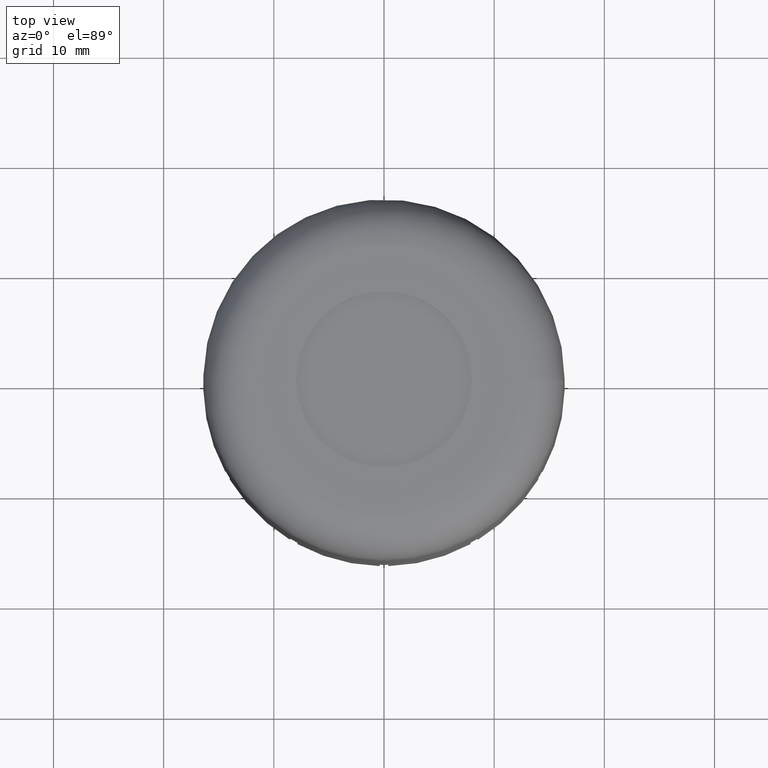
[diagram: clean part render]
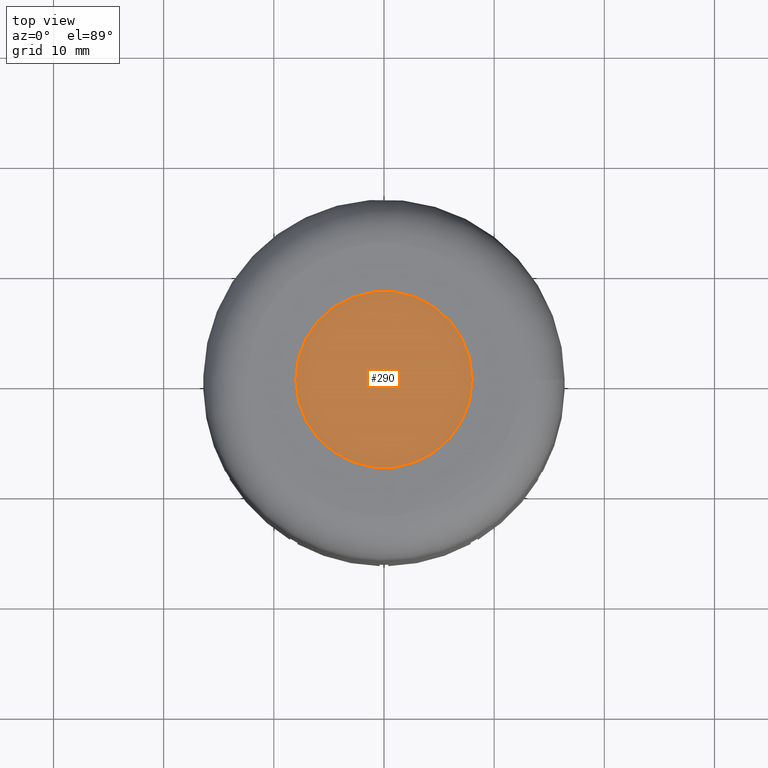
[diagram: same view with one face highlighted and labeled with its STEP entity id]
A machine part, top view. The second image highlights one B-rep face of the part: STEP entity #290.
In plain terms, the highlighted planar face has unit normal (0, 0, -1).
Its self-contained STEP definition (entity closure, byte-faithful):
#126=PLANE('',#3884);
#290=ADVANCED_FACE('',(#525),#126,.F.);
#525=FACE_OUTER_BOUND('',#706,.T.);
#706=EDGE_LOOP('',(#1430));
#953=CIRCLE('',#3882,8.);
#1430=ORIENTED_EDGE('',*,*,#2803,.F.);
#2392=VERTEX_POINT('',#5865);
#2803=EDGE_CURVE('',#2392,#2392,#953,.T.);
#3882=AXIS2_PLACEMENT_3D('',#5864,#4698,#4699);
#3884=AXIS2_PLACEMENT_3D('',#5867,#4702,#4703);
#4698=DIRECTION('',(0.,0.,-1.));
#4699=DIRECTION('',(1.,0.,0.));
#4702=DIRECTION('',(0.,0.,-1.));
#4703=DIRECTION('',(-1.,0.,0.));
#5864=CARTESIAN_POINT('',(9.86076131526265E-032,0.,45.7));
#5865=CARTESIAN_POINT('',(8.,0.,45.7));
#5867=CARTESIAN_POINT('',(9.86076131526265E-032,0.,45.7));